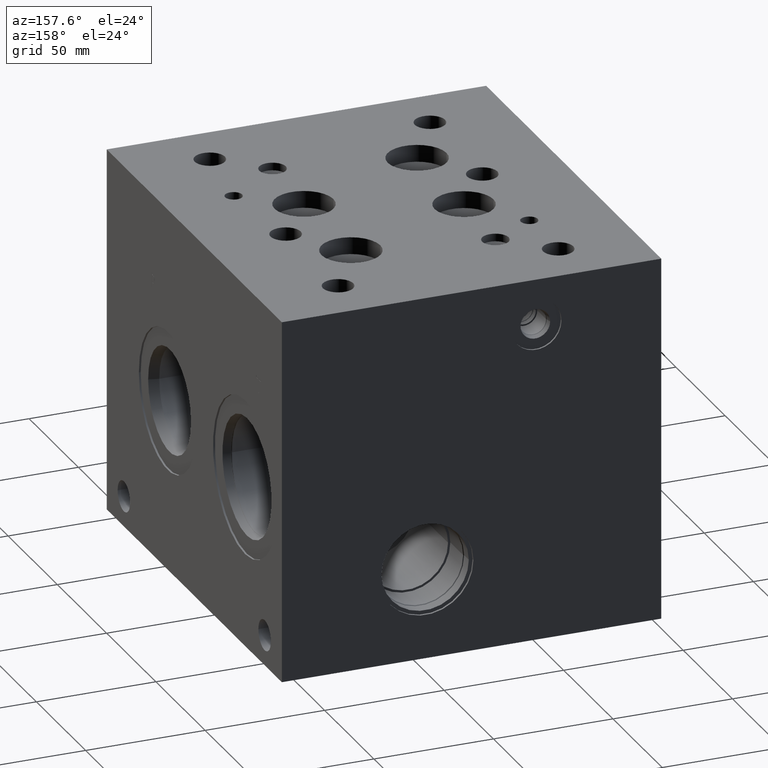
[diagram: clean part render]
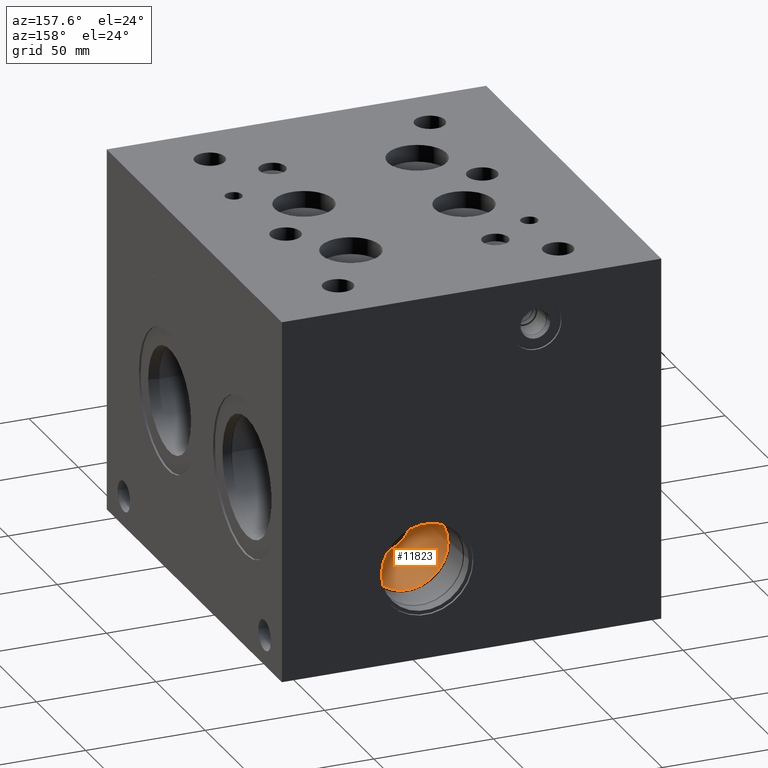
[diagram: same view with one face highlighted and labeled with its STEP entity id]
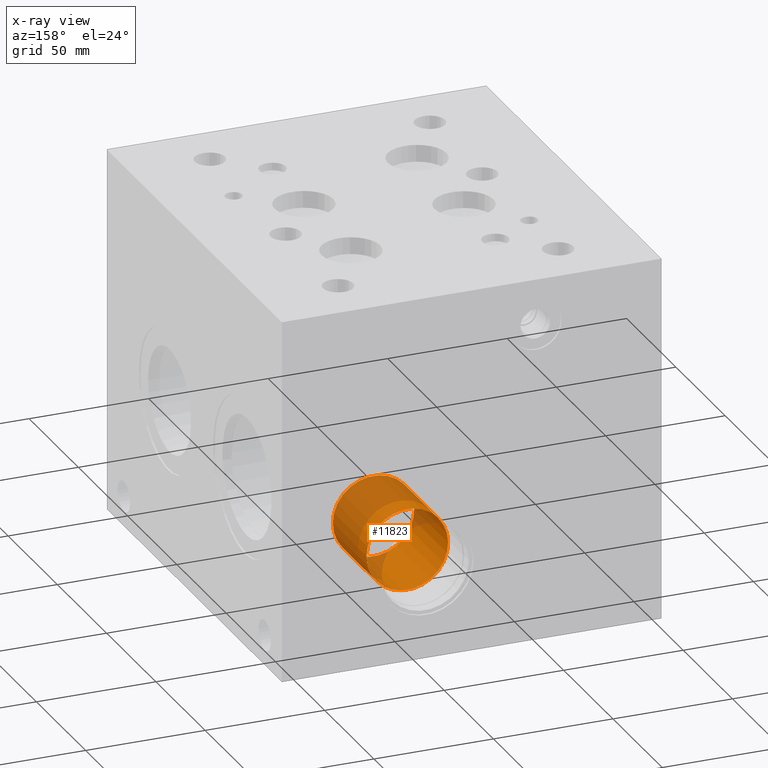
[diagram: x-ray of the same camera — body ghosted, the highlighted face saturated]
A machine part, auxiliary view. The second image highlights one B-rep face of the part: STEP entity #11823.
The next image is the same camera in x-ray: the body ghosted, the highlighted face saturated — about 47% of this face is hidden behind the body in this view.
In plain terms, the highlighted cylindrical surface (bore or boss wall) has radius 17.0561 mm, axis along (0, -1, 0).
Its self-contained STEP definition (entity closure, byte-faithful):
#70=CYLINDRICAL_SURFACE('',#12347,17.0561);
#174=CIRCLE('',#12345,17.0561);
#175=CIRCLE('',#12346,17.0561);
#176=CIRCLE('',#12348,17.0561);
#177=CIRCLE('',#12349,17.0561);
#1325=FACE_OUTER_BOUND('',#1999,.T.);
#1999=EDGE_LOOP('',(#9991,#9992,#9993,#9994,#9995,#9996));
#3165=LINE('',#19835,#4257);
#4257=VECTOR('',#14423,17.0561);
#5539=VERTEX_POINT('',#19829);
#5540=VERTEX_POINT('',#19830);
#5541=VERTEX_POINT('',#19834);
#5542=VERTEX_POINT('',#19836);
#7097=EDGE_CURVE('',#5539,#5540,#174,.T.);
#7098=EDGE_CURVE('',#5540,#5539,#175,.T.);
#7099=EDGE_CURVE('',#5540,#5541,#3165,.T.);
#7100=EDGE_CURVE('',#5541,#5542,#176,.T.);
#7101=EDGE_CURVE('',#5542,#5541,#177,.T.);
#9991=ORIENTED_EDGE('',*,*,#7097,.F.);
#9992=ORIENTED_EDGE('',*,*,#7098,.F.);
#9993=ORIENTED_EDGE('',*,*,#7099,.T.);
#9994=ORIENTED_EDGE('',*,*,#7100,.T.);
#9995=ORIENTED_EDGE('',*,*,#7101,.T.);
#9996=ORIENTED_EDGE('',*,*,#7099,.F.);
#11823=ADVANCED_FACE('',(#1325),#70,.F.);
#12345=AXIS2_PLACEMENT_3D('',#19831,#14417,#14418);
#12346=AXIS2_PLACEMENT_3D('',#19832,#14419,#14420);
#12347=AXIS2_PLACEMENT_3D('',#19833,#14421,#14422);
#12348=AXIS2_PLACEMENT_3D('',#19837,#14424,#14425);
#12349=AXIS2_PLACEMENT_3D('',#19838,#14426,#14427);
#14417=DIRECTION('center_axis',(0.,-1.,0.));
#14418=DIRECTION('ref_axis',(1.,0.,0.));
#14419=DIRECTION('center_axis',(0.,-1.,0.));
#14420=DIRECTION('ref_axis',(1.,0.,0.));
#14421=DIRECTION('center_axis',(0.,-1.,0.));
#14422=DIRECTION('ref_axis',(1.,0.,0.));
#14423=DIRECTION('',(0.,-1.,0.));
#14424=DIRECTION('center_axis',(0.,-1.,0.));
#14425=DIRECTION('ref_axis',(1.,0.,0.));
#14426=DIRECTION('center_axis',(0.,-1.,0.));
#14427=DIRECTION('ref_axis',(1.,0.,0.));
#19829=CARTESIAN_POINT('',(115.4811,158.75,38.1));
#19830=CARTESIAN_POINT('',(81.3689,158.75,38.1));
#19831=CARTESIAN_POINT('Origin',(98.425,158.75,38.1));
#19832=CARTESIAN_POINT('Origin',(98.425,158.75,38.1));
#19833=CARTESIAN_POINT('Origin',(98.425,141.62405,38.1));
#19834=CARTESIAN_POINT('',(81.3689,124.4981,38.1));
#19835=CARTESIAN_POINT('',(81.3689,141.62405,38.1));
#19836=CARTESIAN_POINT('',(115.4811,124.4981,38.1));
#19837=CARTESIAN_POINT('Origin',(98.425,124.4981,38.1));
#19838=CARTESIAN_POINT('Origin',(98.425,124.4981,38.1));